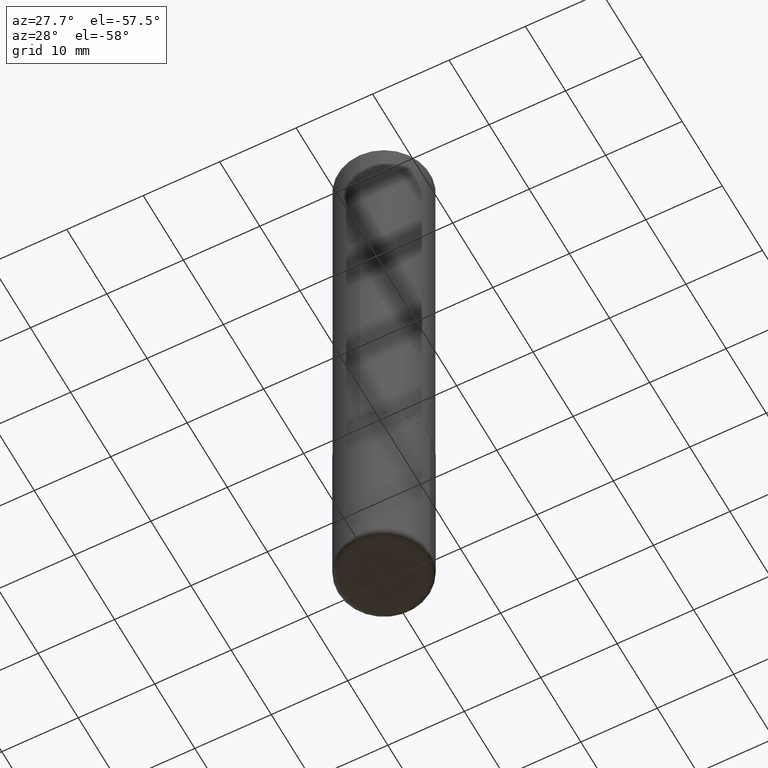
[diagram: clean part render]
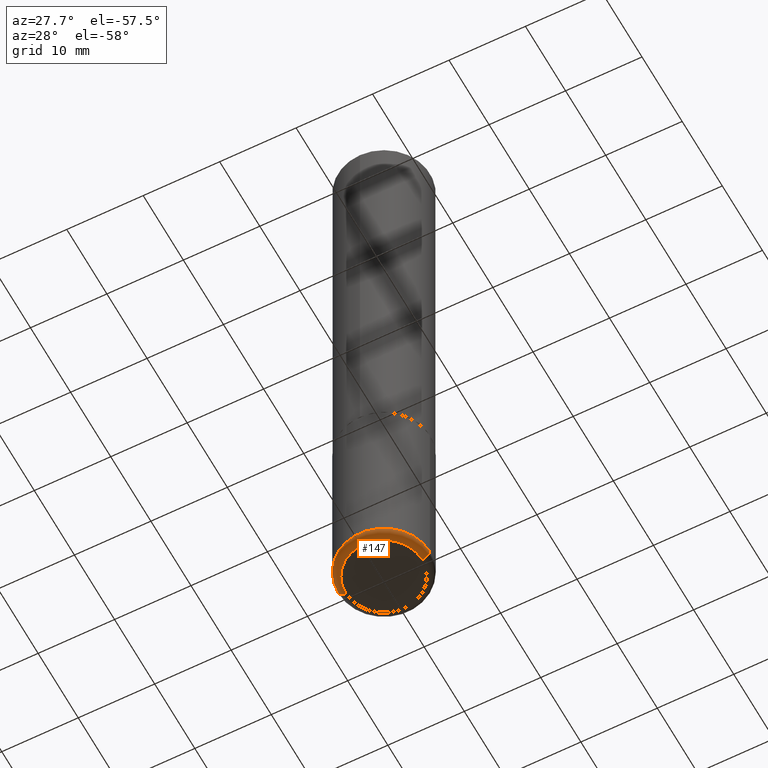
[diagram: same view with one face highlighted and labeled with its STEP entity id]
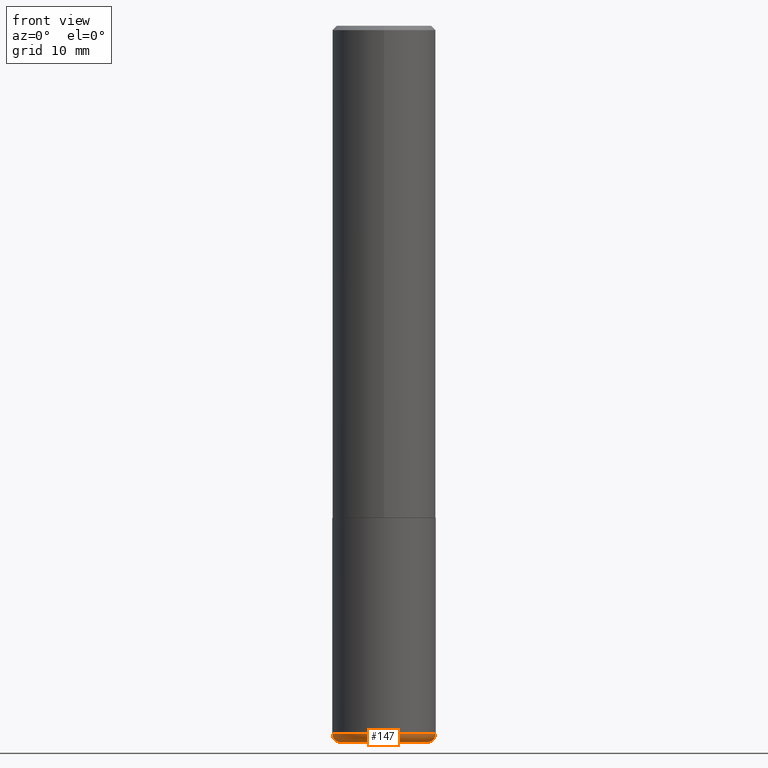
[diagram: same view with one face highlighted and labeled with its STEP entity id]
A machine part, auxiliary view. The second image highlights one B-rep face of the part: STEP entity #147.
A second angle (front view) of the same face is appended — the face is thin or edge-on in the first view.
In plain terms, the highlighted toroidal blend (fillet) surface has major radius 4.9987 mm and minor (blend) radius 1.0008 mm.
Its self-contained STEP definition (entity closure, byte-faithful):
#11 = DIRECTION ( 'NONE',  ( 1.000000000000000000, -6.982962677686270655E-15, 4.883557194083114583E-29 ) ) ;
#14 = AXIS2_PLACEMENT_3D ( 'NONE', #16, #379, #133 ) ;
#16 = CARTESIAN_POINT ( 'NONE',  ( 7.894706947007477118E-29, -1.127154920618732880E-14, -3.228299999999999947 ) ) ;
#24 = VERTEX_POINT ( 'NONE', #380 ) ;
#26 = EDGE_LOOP ( 'NONE', ( #201, #242, #196, #360 ) ) ;
#34 = VERTEX_POINT ( 'NONE', #224 ) ;
#52 = DIRECTION ( 'NONE',  ( 1.000000000000000000, -6.982962677686271444E-15, 0.000000000000000000 ) ) ;
#65 = AXIS2_PLACEMENT_3D ( 'NONE', #240, #367, #88 ) ;
#81 = CARTESIAN_POINT ( 'NONE',  ( 7.991058417971171713E-29, -1.140911357093774644E-14, -3.267700000000000049 ) ) ;
#84 = CIRCLE ( 'NONE', #203, 0.1968000000000000027 ) ;
#88 = DIRECTION ( 'NONE',  ( -1.000000000000000000, 7.105427357601014480E-15, 0.000000000000000000 ) ) ;
#95 = CIRCLE ( 'NONE', #126, 0.03940000000000005997 ) ;
#96 = VERTEX_POINT ( 'NONE', #299 ) ;
#126 = AXIS2_PLACEMENT_3D ( 'NONE', #402, #405, #190 ) ;
#133 = DIRECTION ( 'NONE',  ( 1.000000000000000000, -6.982962677686265133E-15, 0.000000000000000000 ) ) ;
#141 = CIRCLE ( 'NONE', #14, 0.2361999999999999933 ) ;
#146 = CIRCLE ( 'NONE', #65, 0.03940000000000005997 ) ;
#147 = ADVANCED_FACE ( 'NONE', ( #264 ), #214, .T. ) ;
#154 = AXIS2_PLACEMENT_3D ( 'NONE', #333, #301, #11 ) ;
#190 = DIRECTION ( 'NONE',  ( 1.000000000000000000, -6.982962677686267499E-15, 0.000000000000000000 ) ) ;
#196 = ORIENTED_EDGE ( 'NONE', *, *, #381, .T. ) ;
#199 = EDGE_CURVE ( 'NONE', #226, #96, #146, .T. ) ;
#201 = ORIENTED_EDGE ( 'NONE', *, *, #199, .F. ) ;
#203 = AXIS2_PLACEMENT_3D ( 'NONE', #81, #212, #52 ) ;
#212 = DIRECTION ( 'NONE',  ( -2.445468806185136597E-29, 3.491481338843145583E-15, 1.000000000000000000 ) ) ;
#214 = TOROIDAL_SURFACE ( 'NONE', #154, 0.1968000000000000027, 0.03940000000000005997 ) ;
#224 = CARTESIAN_POINT ( 'NONE',  ( 0.1968000000000000027, -1.278336062590640454E-14, -3.267700000000000049 ) ) ;
#226 = VERTEX_POINT ( 'NONE', #338 ) ;
#240 = CARTESIAN_POINT ( 'NONE',  ( -0.1968000000000000027, -9.873201102211451027E-15, -3.228299999999999947 ) ) ;
#242 = ORIENTED_EDGE ( 'NONE', *, *, #391, .T. ) ;
#264 = FACE_OUTER_BOUND ( 'NONE', #26, .T. ) ;
#299 = CARTESIAN_POINT ( 'NONE',  ( -0.2362000000000000210, -9.593247264321970832E-15, -3.228299999999999947 ) ) ;
#301 = DIRECTION ( 'NONE',  ( -2.445468806185136597E-29, 3.491481338843145583E-15, 1.000000000000000000 ) ) ;
#333 = CARTESIAN_POINT ( 'NONE',  ( 7.894706947007477118E-29, -1.127154920618732880E-14, -3.228299999999999947 ) ) ;
#338 = CARTESIAN_POINT ( 'NONE',  ( -0.1968000000000000027, -9.802006365641922115E-15, -3.267700000000000049 ) ) ;
#360 = ORIENTED_EDGE ( 'NONE', *, *, #398, .F. ) ;
#367 = DIRECTION ( 'NONE',  ( 7.105427357601001859E-15, 1.000000000000000000, -3.491481338843145583E-15 ) ) ;
#379 = DIRECTION ( 'NONE',  ( -2.445468806185136597E-29, 3.491481338843145583E-15, 1.000000000000000000 ) ) ;
#380 = CARTESIAN_POINT ( 'NONE',  ( 0.2362000000000000210, -1.292092499065682375E-14, -3.228299999999999947 ) ) ;
#381 = EDGE_CURVE ( 'NONE', #34, #24, #95, .T. ) ;
#391 = EDGE_CURVE ( 'NONE', #226, #34, #84, .T. ) ;
#398 = EDGE_CURVE ( 'NONE', #96, #24, #141, .T. ) ;
#402 = CARTESIAN_POINT ( 'NONE',  ( 0.1968000000000000027, -1.264579626115598374E-14, -3.228299999999999947 ) ) ;
#405 = DIRECTION ( 'NONE',  ( -6.982962677686266711E-15, -1.000000000000000000, 3.491481338843145583E-15 ) ) ;